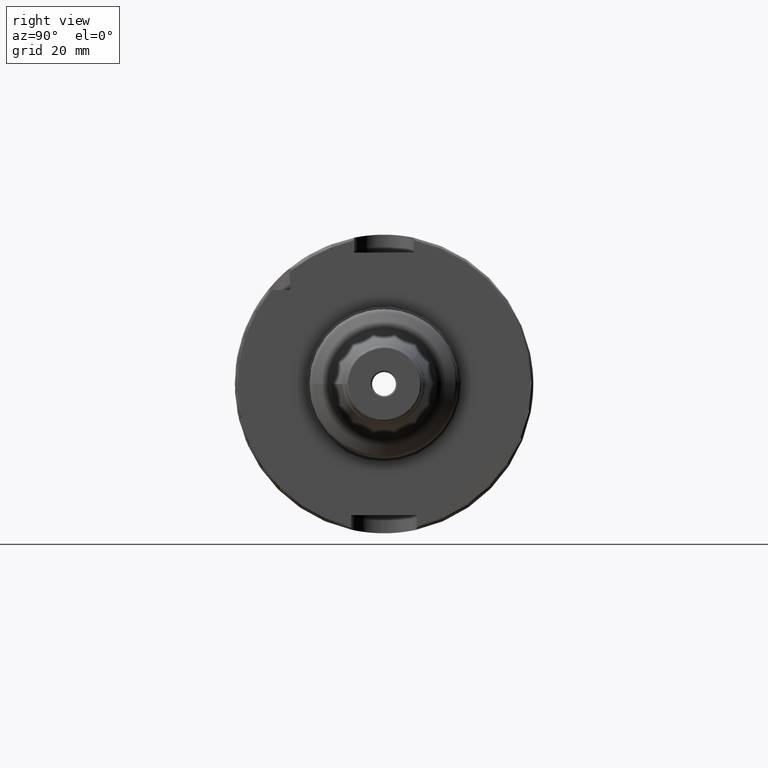
[diagram: clean part render]
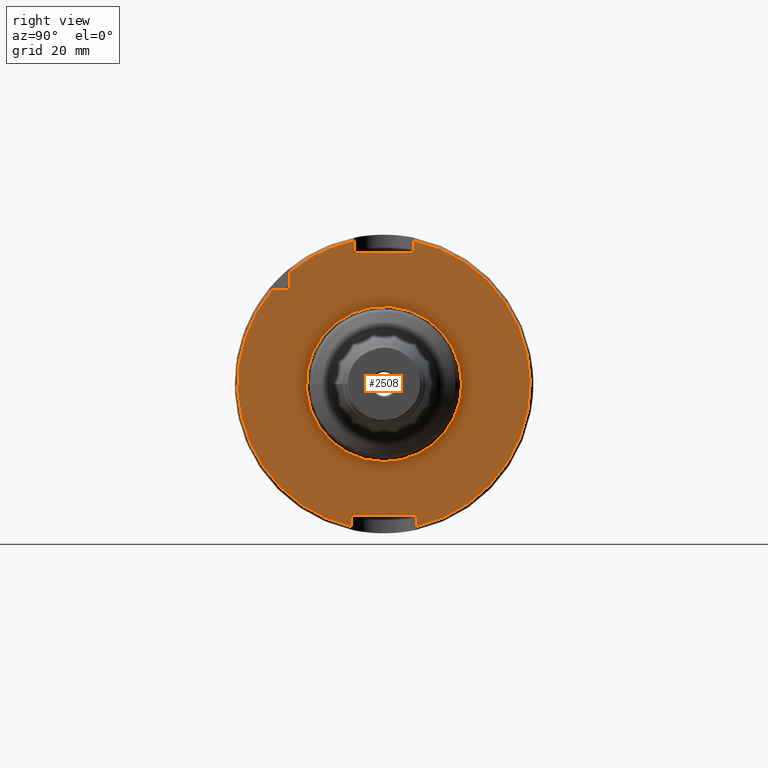
[diagram: same view with one face highlighted and labeled with its STEP entity id]
A machine part, right view. The second image highlights one B-rep face of the part: STEP entity #2508.
In plain terms, the highlighted planar face has unit normal (1, 0, 0).
Its self-contained STEP definition (entity closure, byte-faithful):
#117=FACE_BOUND('',#566,.T.);
#128=PLANE('',#2671);
#167=LINE('',#3898,#281);
#168=LINE('',#3902,#282);
#169=LINE('',#3904,#283);
#170=LINE('',#3906,#284);
#171=LINE('',#3910,#285);
#172=LINE('',#3912,#286);
#173=LINE('',#3914,#287);
#174=LINE('',#3917,#288);
#281=VECTOR('',#3053,10.);
#282=VECTOR('',#3056,10.);
#283=VECTOR('',#3057,10.);
#284=VECTOR('',#3058,10.);
#285=VECTOR('',#3061,10.);
#286=VECTOR('',#3062,10.);
#287=VECTOR('',#3063,10.);
#288=VECTOR('',#3066,10.);
#431=FACE_OUTER_BOUND('',#565,.T.);
#565=EDGE_LOOP('',(#1654,#1655,#1656,#1657,#1658,#1659,#1660,#1661,#1662,
#1663,#1664));
#566=EDGE_LOOP('',(#1665,#1666));
#710=CIRCLE('',#2663,26.);
#711=CIRCLE('',#2664,26.);
#717=CIRCLE('',#2672,49.);
#718=CIRCLE('',#2673,49.);
#719=CIRCLE('',#2674,49.);
#936=VERTEX_POINT('',#3879);
#937=VERTEX_POINT('',#3881);
#942=VERTEX_POINT('',#3896);
#943=VERTEX_POINT('',#3897);
#944=VERTEX_POINT('',#3899);
#945=VERTEX_POINT('',#3901);
#946=VERTEX_POINT('',#3903);
#947=VERTEX_POINT('',#3905);
#948=VERTEX_POINT('',#3907);
#949=VERTEX_POINT('',#3909);
#950=VERTEX_POINT('',#3911);
#951=VERTEX_POINT('',#3913);
#952=VERTEX_POINT('',#3915);
#1225=EDGE_CURVE('',#936,#937,#710,.T.);
#1226=EDGE_CURVE('',#937,#936,#711,.T.);
#1233=EDGE_CURVE('',#942,#943,#167,.T.);
#1234=EDGE_CURVE('',#943,#944,#717,.T.);
#1235=EDGE_CURVE('',#944,#945,#168,.T.);
#1236=EDGE_CURVE('',#945,#946,#169,.T.);
#1237=EDGE_CURVE('',#946,#947,#170,.T.);
#1238=EDGE_CURVE('',#947,#948,#718,.T.);
#1239=EDGE_CURVE('',#948,#949,#171,.T.);
#1240=EDGE_CURVE('',#949,#950,#172,.T.);
#1241=EDGE_CURVE('',#950,#951,#173,.T.);
#1242=EDGE_CURVE('',#951,#952,#719,.T.);
#1243=EDGE_CURVE('',#952,#942,#174,.T.);
#1654=ORIENTED_EDGE('',*,*,#1233,.T.);
#1655=ORIENTED_EDGE('',*,*,#1234,.T.);
#1656=ORIENTED_EDGE('',*,*,#1235,.T.);
#1657=ORIENTED_EDGE('',*,*,#1236,.T.);
#1658=ORIENTED_EDGE('',*,*,#1237,.T.);
#1659=ORIENTED_EDGE('',*,*,#1238,.T.);
#1660=ORIENTED_EDGE('',*,*,#1239,.T.);
#1661=ORIENTED_EDGE('',*,*,#1240,.T.);
#1662=ORIENTED_EDGE('',*,*,#1241,.T.);
#1663=ORIENTED_EDGE('',*,*,#1242,.T.);
#1664=ORIENTED_EDGE('',*,*,#1243,.T.);
#1665=ORIENTED_EDGE('',*,*,#1226,.F.);
#1666=ORIENTED_EDGE('',*,*,#1225,.F.);
#2508=ADVANCED_FACE('',(#431,#117),#128,.T.);
#2663=AXIS2_PLACEMENT_3D('',#3882,#3034,#3035);
#2664=AXIS2_PLACEMENT_3D('',#3883,#3036,#3037);
#2671=AXIS2_PLACEMENT_3D('',#3895,#3051,#3052);
#2672=AXIS2_PLACEMENT_3D('',#3900,#3054,#3055);
#2673=AXIS2_PLACEMENT_3D('',#3908,#3059,#3060);
#2674=AXIS2_PLACEMENT_3D('',#3916,#3064,#3065);
#3034=DIRECTION('center_axis',(1.,0.,0.));
#3035=DIRECTION('ref_axis',(0.,-1.,-1.22464679914735E-16));
#3036=DIRECTION('center_axis',(1.,0.,0.));
#3037=DIRECTION('ref_axis',(0.,-1.,-1.22464679914735E-16));
#3051=DIRECTION('center_axis',(1.,0.,0.));
#3052=DIRECTION('ref_axis',(0.,0.,-1.));
#3053=DIRECTION('',(0.,-1.,0.));
#3054=DIRECTION('center_axis',(1.,0.,0.));
#3055=DIRECTION('ref_axis',(0.,0.,-1.));
#3056=DIRECTION('',(0.,0.,1.));
#3057=DIRECTION('',(0.,1.,0.));
#3058=DIRECTION('',(0.,0.,-1.));
#3059=DIRECTION('center_axis',(1.,0.,0.));
#3060=DIRECTION('ref_axis',(0.,0.,-1.));
#3061=DIRECTION('',(0.,0.,-1.));
#3062=DIRECTION('',(0.,-1.,0.));
#3063=DIRECTION('',(0.,0.,1.));
#3064=DIRECTION('center_axis',(1.,0.,0.));
#3065=DIRECTION('ref_axis',(0.,0.,-1.));
#3066=DIRECTION('',(0.,0.,-1.));
#3879=CARTESIAN_POINT('',(29.,-3.18408167778312E-15,-26.));
#3881=CARTESIAN_POINT('',(29.,26.,6.36816335556623E-15));
#3882=CARTESIAN_POINT('Origin',(29.,0.,0.));
#3883=CARTESIAN_POINT('Origin',(29.,0.,0.));
#3895=CARTESIAN_POINT('Origin',(29.,0.,0.));
#3896=CARTESIAN_POINT('',(29.,-31.5,31.5));
#3897=CARTESIAN_POINT('',(29.,-37.5333185316726,31.5));
#3898=CARTESIAN_POINT('',(29.,-18.25,31.5));
#3899=CARTESIAN_POINT('',(29.,-11.,-47.7493455452533));
#3900=CARTESIAN_POINT('Origin',(29.,0.,0.));
#3901=CARTESIAN_POINT('',(29.,-11.,-44.));
#3902=CARTESIAN_POINT('',(29.,-11.,-22.));
#3903=CARTESIAN_POINT('',(29.,11.,-44.));
#3904=CARTESIAN_POINT('',(29.,-5.55111512312578E-16,-44.));
#3905=CARTESIAN_POINT('',(29.,11.,-47.7493455452533));
#3906=CARTESIAN_POINT('',(29.,11.,-22.));
#3907=CARTESIAN_POINT('',(29.,10.,47.9687398208458));
#3908=CARTESIAN_POINT('Origin',(29.,0.,0.));
#3909=CARTESIAN_POINT('',(29.,10.,44.));
#3910=CARTESIAN_POINT('',(29.,10.,22.));
#3911=CARTESIAN_POINT('',(29.,-10.,44.));
#3912=CARTESIAN_POINT('',(29.,0.,44.));
#3913=CARTESIAN_POINT('',(29.,-10.,47.9687398208458));
#3914=CARTESIAN_POINT('',(29.,-10.,22.));
#3915=CARTESIAN_POINT('',(29.,-31.5,37.5333185316726));
#3916=CARTESIAN_POINT('Origin',(29.,0.,0.));
#3917=CARTESIAN_POINT('',(29.,-31.5,15.75));